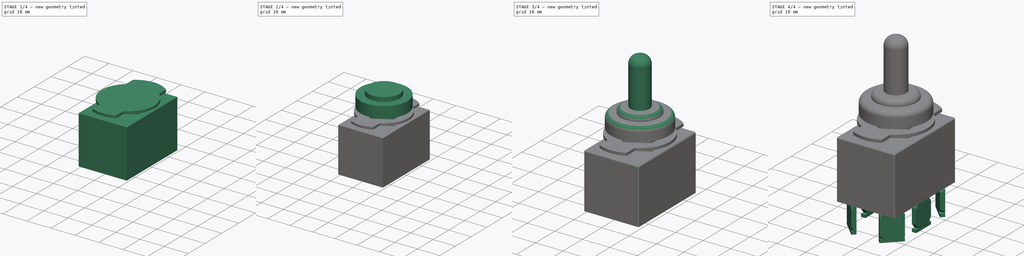
[diagram: build sequence overview — one tinted view per stage of 4, left to right]
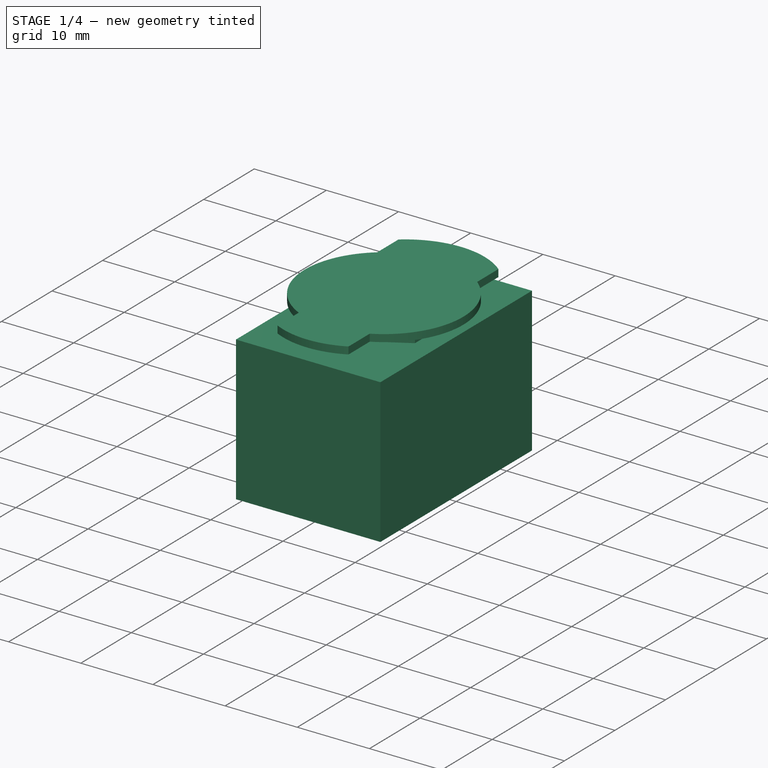
[diagram: stage 1 of 4 — iso view after this stage's code; geometry added in this stage tinted green]
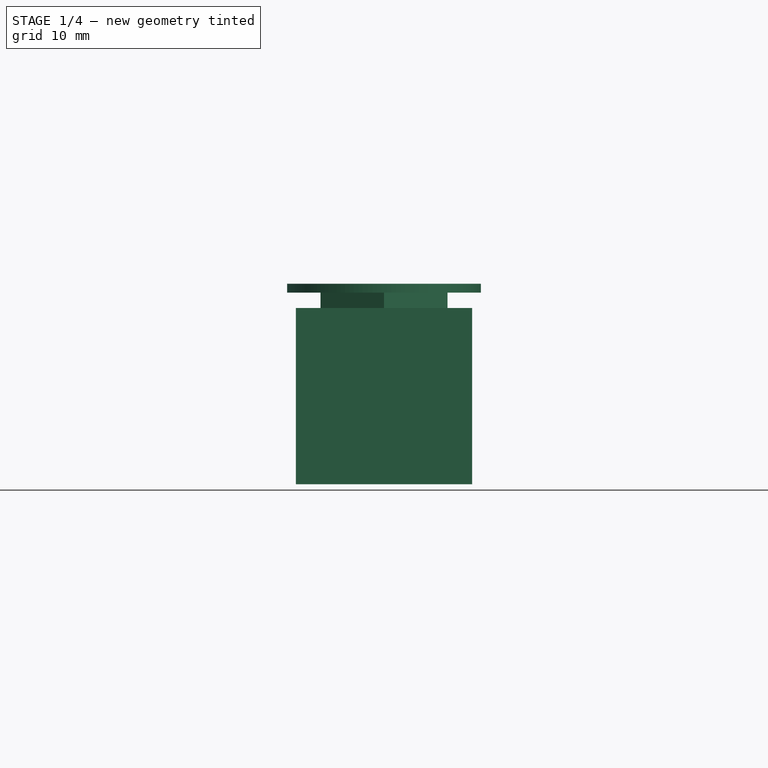
[diagram: stage 1 of 4 — front view after this stage's code; geometry added in this stage tinted green]
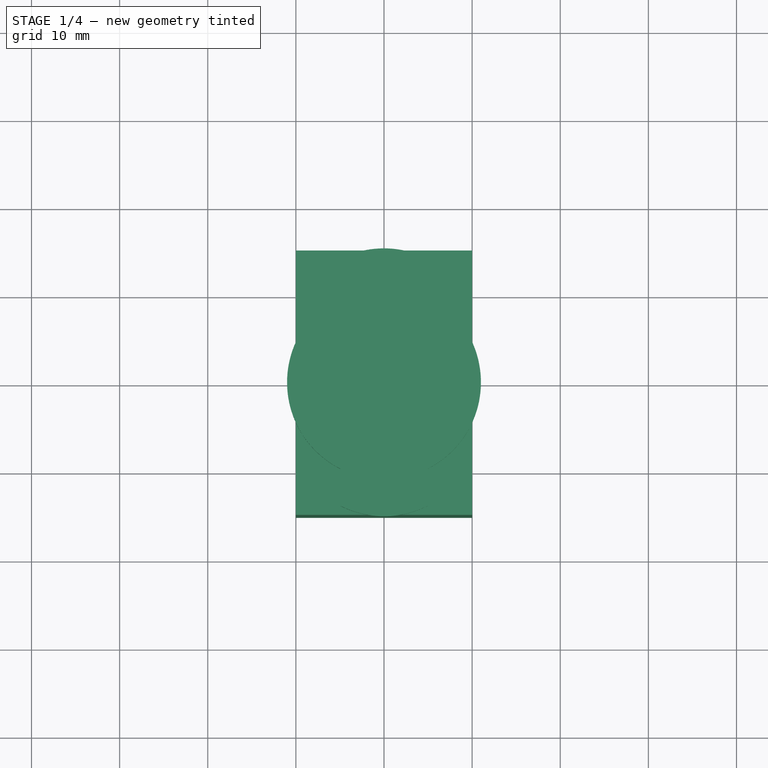
[diagram: stage 1 of 4 — top view after this stage's code; geometry added in this stage tinted green]
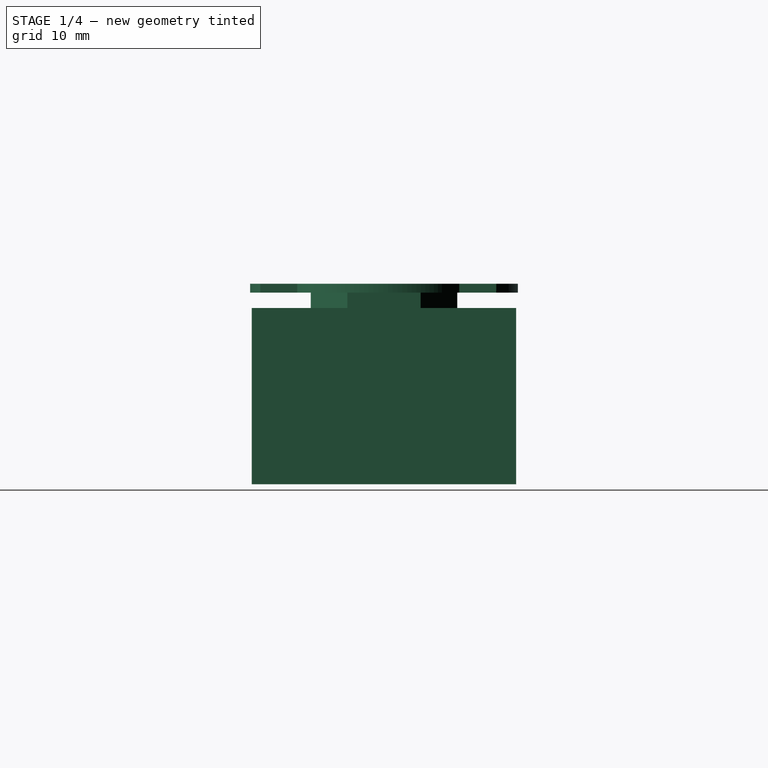
[diagram: stage 1 of 4 — right view after this stage's code; geometry added in this stage tinted green]
FCSTD DOCUMENT  (FreeCAD 1.0R39109 (Git))
Label: switch_3s_15a
License: All rights reserved
LicenseURL: https://en.wikipedia.org/wiki/All_rights_reserved
objects: Sketcher::SketchObject×10, PartDesign::Pad×9, PartDesign::Fillet×3, PartDesign::Pocket×1, PartDesign::Body×1
note: 60 computed .brp shape members not serialized (recipe doc carries the construction recipe); baked Part::Feature solids carry a one-line shape summary decoded from their .brp

FEATURE [Sketcher::SketchObject] Sketch
  ArcFitTolerance = 1e-06
  AttachmentSupport = -> [XY_Plane]
  FullyConstrained = true
  MakeInternals = false
  MapMode = 5
  sketch-geometry (5):
    g0: LineSegment StartX=-10 StartY=15 StartZ=0 EndX=-10 EndY=-15 EndZ=0
    g1: LineSegment StartX=-10 StartY=-15 StartZ=0 EndX=10 EndY=-15 EndZ=0
    g2: LineSegment StartX=10 StartY=-15 StartZ=0 EndX=10 EndY=15 EndZ=0
    g3: LineSegment StartX=10 StartY=15 StartZ=0 EndX=-10 EndY=15 EndZ=0
    g4: GeomPoint [constr] X=0 Y=0 Z=0
  constraints (12):
    c: Coincident(g0,g1)
    c: Coincident(g1,g2)
    c: Coincident(g2,g3)
    c: Coincident(g3,g0)
    c: Vertical(g0)
    c: Vertical(g2)
    c: Horizontal(g1)
    c: Horizontal(g3)
    c: Symmetric(g2,g0,g4)
    c: Coincident(g4,g-1)
    c: DistanceX(g3,g3) = 20
    c: DistanceY(g2,g2) = 30
FEATURE [PartDesign::Pad] Pad  label="BasePad"
  Direction = (0,0,1)
  Length = 20
  Length2 = 10
  Profile = -> Sketch
  ReferenceAxis = -> Sketch [N_Axis]
  Refine = true
  Suppressed = false
  Type = 0
FEATURE [Sketcher::SketchObject] Sketch001
  ArcFitTolerance = 1e-06
  AttachmentSupport = -> [Pad]
  FullyConstrained = true
  MakeInternals = false
  MapMode = 5
  Placement = pos=(0,0,20) rot=(0,0,1;0rad)
  sketch-geometry (7):
    g0: LineSegment StartX=6.35e-13 StartY=-8.31384 StartZ=0 EndX=7.2 EndY=-4.15692 EndZ=0
    g1: LineSegment StartX=7.2 StartY=-4.15692 StartZ=0 EndX=7.2 EndY=4.15692 EndZ=0
    g2: LineSegment StartX=7.2 StartY=4.15692 StartZ=0 EndX=4.103e-13 EndY=8.31384 EndZ=0
    g3: LineSegment StartX=4.103e-13 StartY=8.31384 StartZ=0 EndX=-7.2 EndY=4.15692 EndZ=0
    g4: LineSegment StartX=-7.2 StartY=4.15692 StartZ=0 EndX=-7.2 EndY=-4.15692 EndZ=0
    g5: LineSegment StartX=-7.2 StartY=-4.15692 StartZ=0 EndX=6.35e-13 EndY=-8.31384 EndZ=0
    g6: Circle [constr] CenterX=0 CenterY=0 CenterZ=0 NormalX=0 NormalY=0 NormalZ=1 AngleXU=0 Radius=8.31384
  constraints (16):
    c: Coincident(g0,g1)
    c: Coincident(g1,g2)
    c: Coincident(g2,g3)
    c: Coincident(g3,g4)
    c: Coincident(g4,g5)
    c: Coincident(g5,g0)
    c: Equal(g0, g1-g5) x5
    c: PointOnObject(g0,g6)
    c: PointOnObject(g1,g6)
    c: PointOnObject(g2,g6)
    c: PointOnObject(g3,g6)
    c: PointOnObject(g4,g6)
    c: PointOnObject(g5,g6)
    c: Coincident(g6,g-1)
    c: Vertical(g1)
    c: DistanceX(g3,g1) = 14.4
FEATURE [PartDesign::Pad] Pad001  label="HexPad"
  BaseFeature = -> Pad
  Direction = (0,0,1)
  Length = 1.75
  Length2 = 10
  Profile = -> Sketch001
  ReferenceAxis = -> Sketch001 [N_Axis]
  Refine = true
  Suppressed = false
  Type = 0
FEATURE [Sketcher::SketchObject] Sketch002
  ArcFitTolerance = 1e-06
  AttachmentSupport = -> [Pad001]
  FullyConstrained = false
  MakeInternals = false
  MapMode = 5
  Placement = pos=(0,0,21.75) rot=(0,0,1;0rad)
  sketch-geometry (8):
    g0: ArcOfCircle CenterX=-6e-16 CenterY=4.2 CenterZ=0 NormalX=0 NormalY=0 NormalZ=1 AngleXU=0 Radius=11 StartAngle=0.889849 EndAngle=2.25174
    g1: ArcOfCircle CenterX=0 CenterY=0 CenterZ=0 NormalX=0 NormalY=0 NormalZ=1 AngleXU=0 Radius=11 StartAngle=2.25174 EndAngle=4.24908
    g2: ArcOfCircle CenterX=-9e-16 CenterY=-4.2 CenterZ=0 NormalX=0 NormalY=0 NormalZ=1 AngleXU=0 Radius=11 StartAngle=4.24908 EndAngle=5.17569
    g3: ArcOfCircle CenterX=0 CenterY=0 CenterZ=0 NormalX=0 NormalY=0 NormalZ=1 AngleXU=0 Radius=11 StartAngle=5.17569 EndAngle=7.17303
    g4: LineSegment StartX=-6.92482 StartY=8.54675 StartZ=0 EndX=-6.92482 EndY=12.7467 EndZ=0
    g5: LineSegment StartX=6.92482 StartY=12.7467 StartZ=0 EndX=6.92482 EndY=8.54675 EndZ=0
    g6: LineSegment StartX=-4.91597 StartY=-9.84039 StartZ=0 EndX=-4.91597 EndY=-14.0404 EndZ=0
    g7: LineSegment StartX=4.91597 StartY=-14.0404 StartZ=0 EndX=4.91597 EndY=-9.84039 EndZ=0
  constraints (24):
    c: Coincident(g4,g1)
    c: Coincident(g4,g0)
    c: Coincident(g5,g0)
    c: Coincident(g5,g3)
    c: Coincident(g6,g1)
    c: Coincident(g6,g2)
    c: Coincident(g7,g2)
    c: Coincident(g7,g3)
    c: Vertical(g5)
    c: Vertical(g4)
    c: Vertical(g6)
    c: Vertical(g7)
    c: Coincident(g3,g1)
    c: Coincident(g3,g-1)
    c: Equal(g1,g3)
    c: Radius(g1) = 11
    c: Equal(g2,g1)
    c: Equal(g1,g0)
    c: DistanceY(g5,g5) = 4.2
    c: Horizontal(g0,g0)
    c: Horizontal(g3,g1)
    c: Horizontal(g2,g2)
    c: Equal(g6,g5)
    c: Equal(g5,g4)
FEATURE [PartDesign::Pad] Pad002  label="IndicatorPad"
  BaseFeature = -> Pad001
  Direction = (0,0,1)
  Length = 1
  Length2 = 10
  Profile = -> Sketch002
  ReferenceAxis = -> Sketch002 [N_Axis]
  Refine = true
  Suppressed = false
  Type = 0
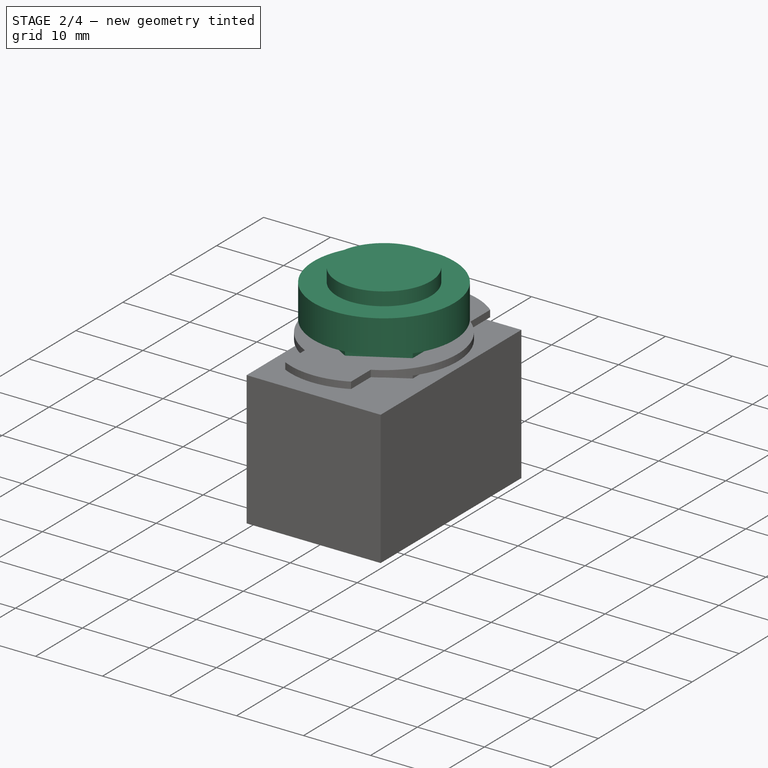
[diagram: stage 2 of 4 — iso view after this stage's code; geometry added in this stage tinted green]
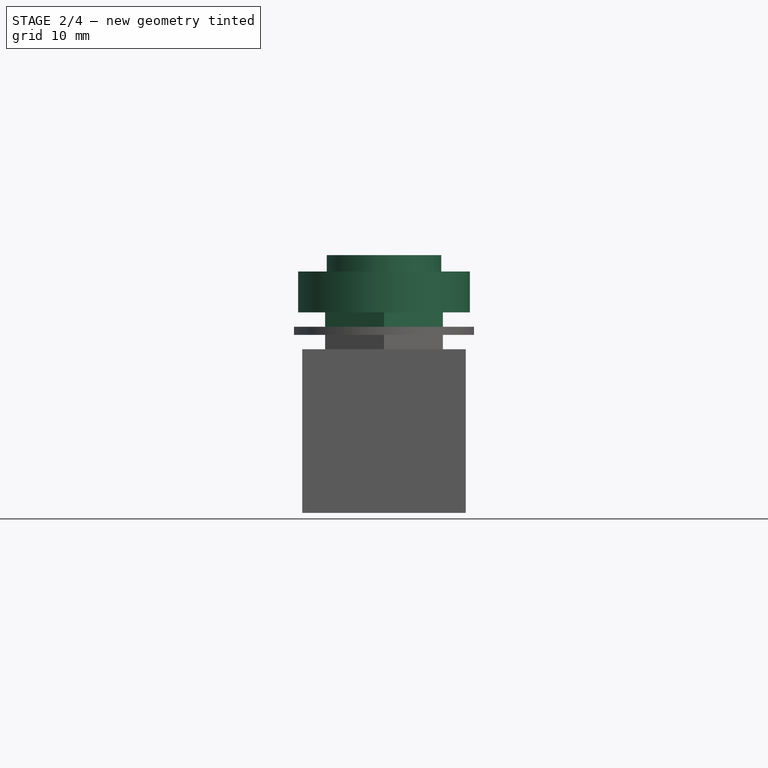
[diagram: stage 2 of 4 — front view after this stage's code; geometry added in this stage tinted green]
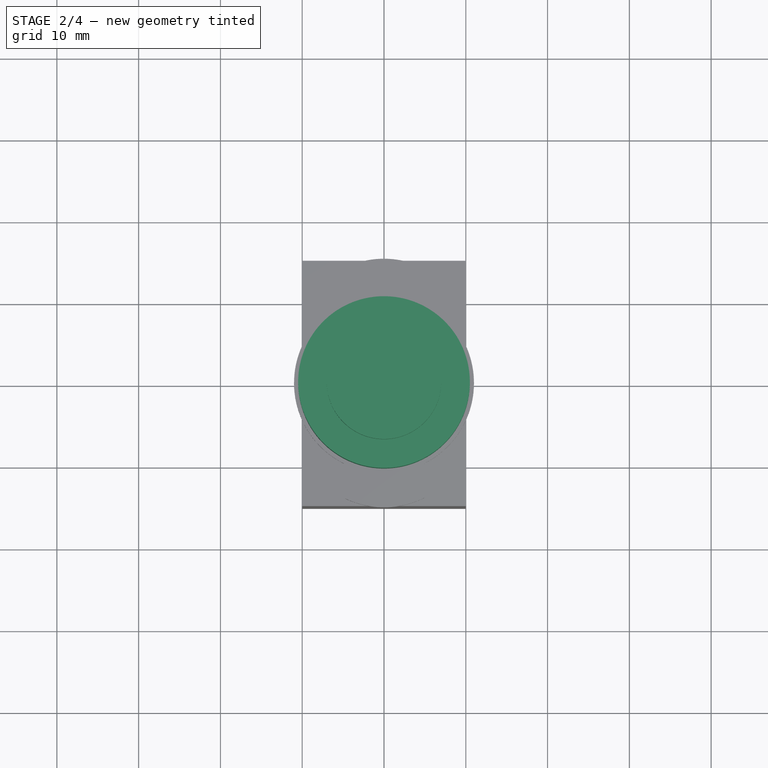
[diagram: stage 2 of 4 — top view after this stage's code; geometry added in this stage tinted green]
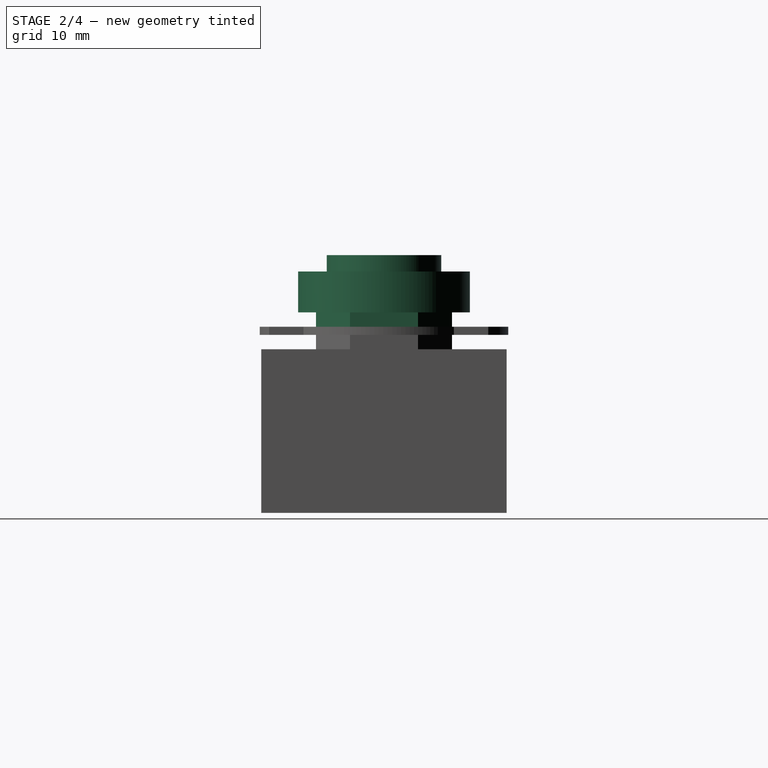
[diagram: stage 2 of 4 — right view after this stage's code; geometry added in this stage tinted green]
FEATURE [Sketcher::SketchObject] Sketch003
  ArcFitTolerance = 1e-06
  AttachmentSupport = -> [Pad002]
  FullyConstrained = true
  MakeInternals = false
  MapMode = 5
  Placement = pos=(0,0,22.75) rot=(0,0,1;0rad)
  sketch-geometry (7):
    g0: LineSegment StartX=7.2 StartY=4.15692 StartZ=0 EndX=2.66e-14 EndY=8.31384 EndZ=0
    g1: LineSegment StartX=2.66e-14 StartY=8.31384 StartZ=0 EndX=-7.2 EndY=4.15692 EndZ=0
    g2: LineSegment StartX=-7.2 StartY=4.15692 StartZ=0 EndX=-7.2 EndY=-4.15692 EndZ=0
    g3: LineSegment StartX=-7.2 StartY=-4.15692 StartZ=0 EndX=1.33e-14 EndY=-8.31384 EndZ=0
    g4: LineSegment StartX=1.35e-14 StartY=-8.31384 StartZ=0 EndX=7.2 EndY=-4.15692 EndZ=0
    g5: LineSegment StartX=7.2 StartY=-4.15692 StartZ=0 EndX=7.2 EndY=4.15692 EndZ=0
    g6: Circle [constr] CenterX=0 CenterY=0 CenterZ=0 NormalX=0 NormalY=0 NormalZ=1 AngleXU=0 Radius=8.31384
  constraints (16):
    c: Coincident(g0,g1)
    c: Coincident(g1,g2)
    c: Coincident(g2,g3)
    c: Coincident(g3,g4)
    c: Coincident(g4,g5)
    c: Coincident(g5,g0)
    c: Equal(g0, g1-g5) x5
    c: PointOnObject(g0,g6)
    c: PointOnObject(g1,g6)
    c: PointOnObject(g2,g6)
    c: PointOnObject(g3,g6)
    c: PointOnObject(g4,g6)
    c: PointOnObject(g5,g6)
    c: Coincident(g6,g-1)
    c: Vertical(g5)
    c: DistanceX(g1,g0) = 14.4
FEATURE [PartDesign::Pad] Pad003  label="HexPad2"
  BaseFeature = -> Pad002
  Direction = (0,0,1)
  Length = 1.75
  Length2 = 10
  Profile = -> Sketch003
  ReferenceAxis = -> Sketch003 [N_Axis]
  Refine = true
  Suppressed = false
  Type = 0
FEATURE [Sketcher::SketchObject] Sketch004
  ArcFitTolerance = 1e-06
  AttachmentSupport = -> [Pad003]
  FullyConstrained = true
  MakeInternals = false
  MapMode = 5
  Placement = pos=(0,0,24.5) rot=(0,0,1;0rad)
  sketch-geometry (1):
    g0: Circle CenterX=0 CenterY=0 CenterZ=0 NormalX=0 NormalY=0 NormalZ=1 AngleXU=0 Radius=10.5
  constraints (2):
    c: Coincident(g0,g-1)
    c: Radius(g0) = 10.5
FEATURE [PartDesign::Pad] Pad004  label="SwicthBasePad"
  BaseFeature = -> Pad003
  Direction = (0,0,1)
  Length = 5
  Length2 = 10
  Profile = -> Sketch004
  ReferenceAxis = -> Sketch004 [N_Axis]
  Refine = true
  Suppressed = false
  Type = 0
FEATURE [Sketcher::SketchObject] Sketch005
  ArcFitTolerance = 1e-06
  AttachmentSupport = -> [Pad004]
  FullyConstrained = true
  MakeInternals = false
  MapMode = 5
  Placement = pos=(0,0,29.5) rot=(0,0,1;0rad)
  sketch-geometry (1):
    g0: Circle CenterX=0 CenterY=0 CenterZ=0 NormalX=0 NormalY=0 NormalZ=1 AngleXU=0 Radius=7
  constraints (2):
    c: Coincident(g0,g-1)
    c: Radius(g0) = 7
FEATURE [PartDesign::Pad] Pad005  label="SwitchBasePad2"
  BaseFeature = -> Pad004
  Direction = (0,0,1)
  Length = 2
  Length2 = 10
  Profile = -> Sketch005
  ReferenceAxis = -> Sketch005 [N_Axis]
  Refine = true
  Suppressed = false
  Type = 0
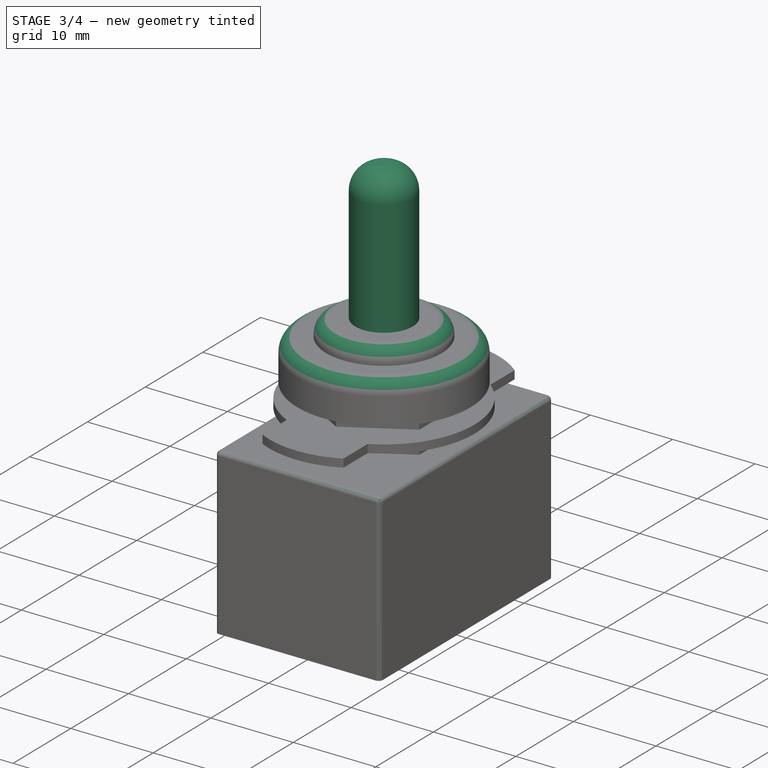
[diagram: stage 3 of 4 — iso view after this stage's code; geometry added in this stage tinted green]
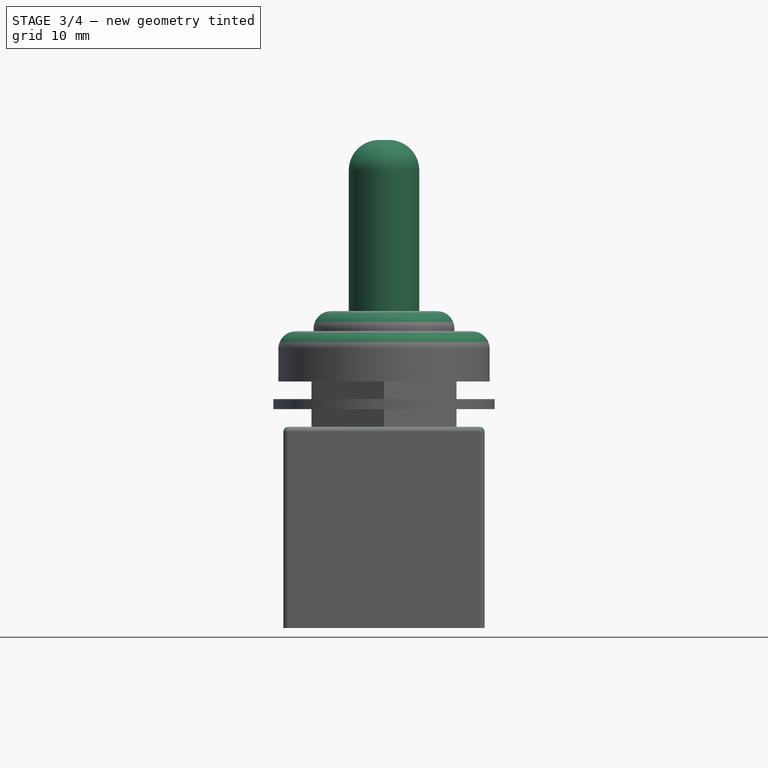
[diagram: stage 3 of 4 — front view after this stage's code; geometry added in this stage tinted green]
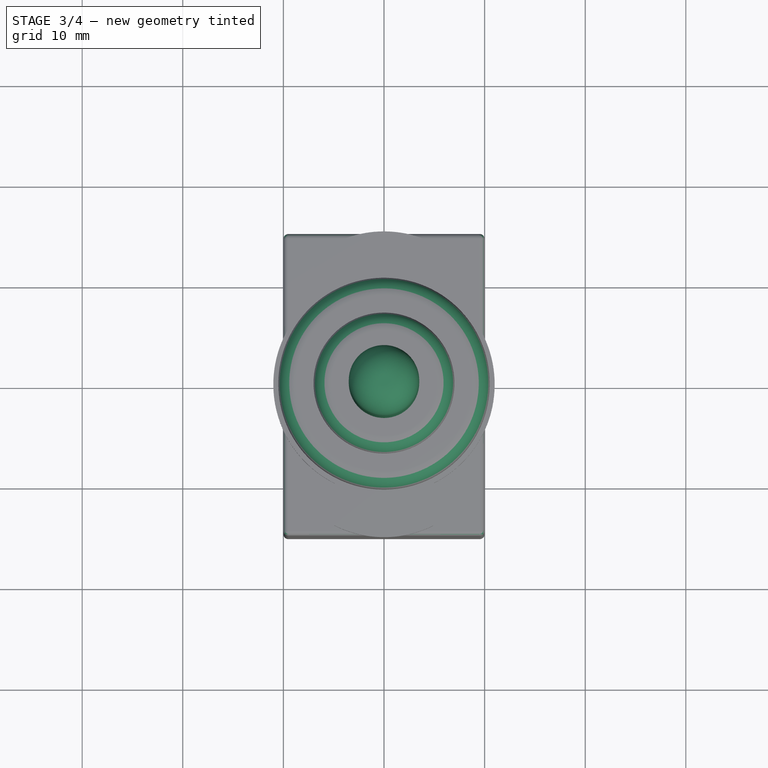
[diagram: stage 3 of 4 — top view after this stage's code; geometry added in this stage tinted green]
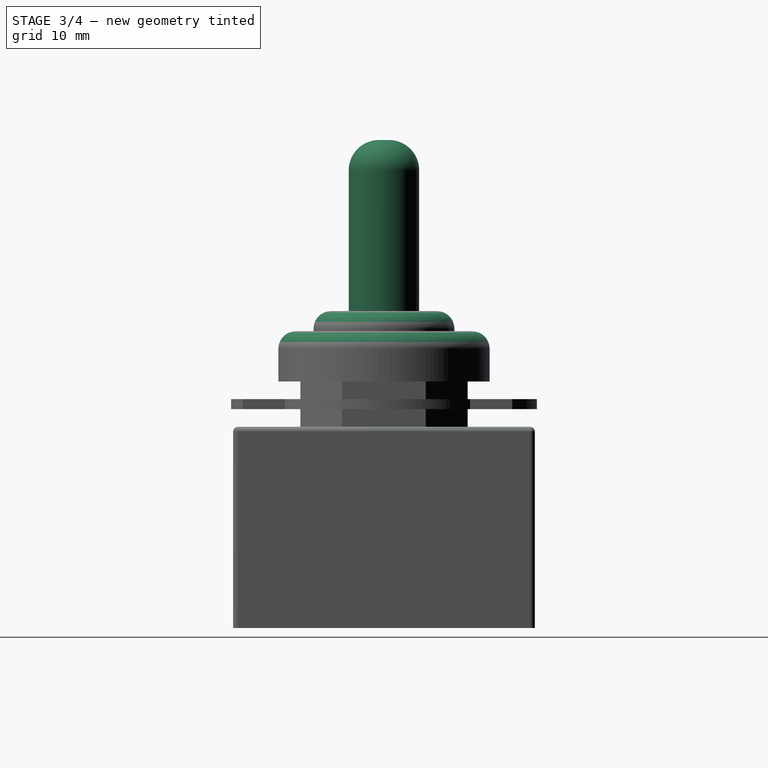
[diagram: stage 3 of 4 — right view after this stage's code; geometry added in this stage tinted green]
FEATURE [Sketcher::SketchObject] Sketch006
  ArcFitTolerance = 1e-06
  AttachmentSupport = -> [Pad005]
  FullyConstrained = true
  MakeInternals = false
  MapMode = 5
  Placement = pos=(0,0,31.5) rot=(0,0,1;0rad)
  sketch-geometry (1):
    g0: Circle CenterX=0 CenterY=0 CenterZ=0 NormalX=0 NormalY=0 NormalZ=1 AngleXU=0 Radius=3.5
  constraints (2):
    c: Coincident(g0,g-1)
    c: Radius(g0) = 3.5
FEATURE [PartDesign::Pad] Pad006  label="SwichtExtensionPad"
  BaseFeature = -> Pad005
  Direction = (0,0,1)
  Length = 17
  Length2 = 10
  Profile = -> Sketch006
  ReferenceAxis = -> Sketch006 [N_Axis]
  Refine = true
  Suppressed = false
  Type = 0
FEATURE [PartDesign::Fillet] Fillet  label="SwitchExtensionFillet"
  Base = -> Pad006 [Edge81]
  BaseFeature = -> Pad006
  Radius = 3
  Refine = true
  SupportTransform = false
  Suppressed = false
  UseAllEdges = false
FEATURE [PartDesign::Fillet] Fillet001  label="BAseFillets"
  Base = -> Fillet [Edge79,Edge81,Edge77,Edge76,Edge72,Edge74,Edge75,Edge73]
  BaseFeature = -> Fillet
  Radius = 0.5
  Refine = true
  SupportTransform = false
  Suppressed = false
  UseAllEdges = false
FEATURE [PartDesign::Fillet] Fillet002  label="SwitchBaseFillet"
  Base = -> Fillet001 [Edge103,Edge106]
  BaseFeature = -> Fillet001
  Radius = 1.75
  Refine = true
  SupportTransform = false
  Suppressed = false
  UseAllEdges = false
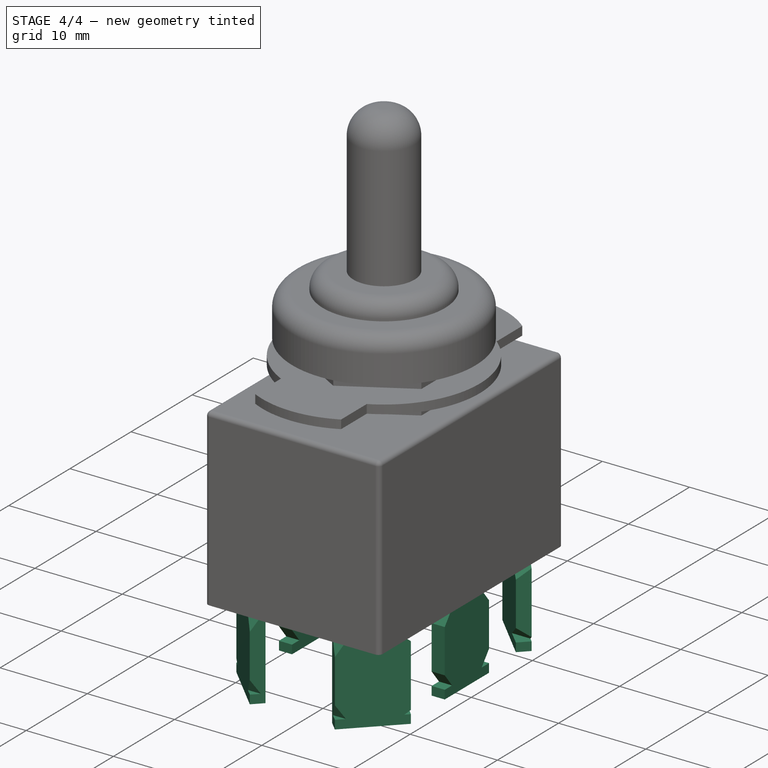
[diagram: stage 4 of 4 — iso view after this stage's code; geometry added in this stage tinted green]
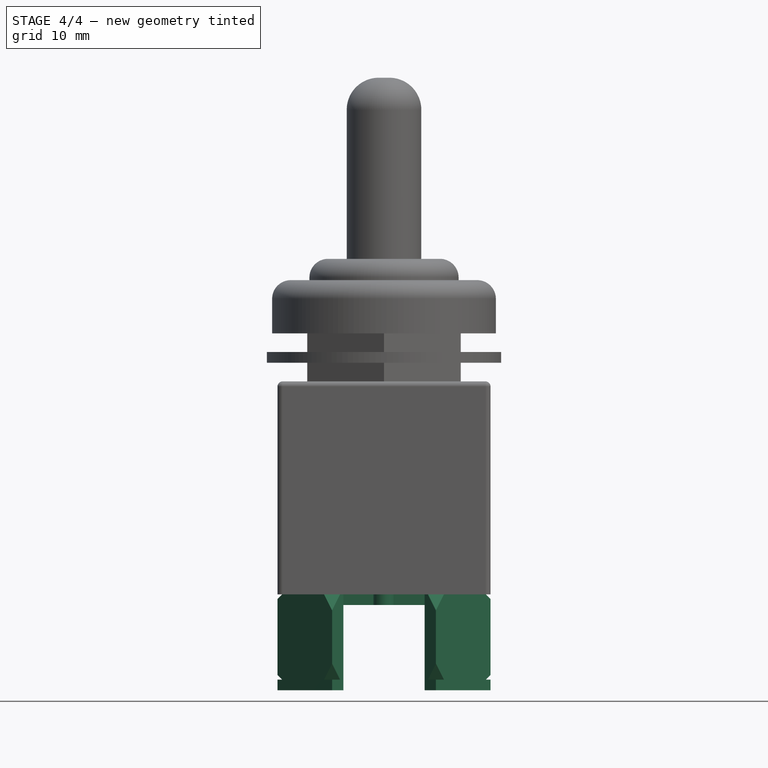
[diagram: stage 4 of 4 — front view after this stage's code; geometry added in this stage tinted green]
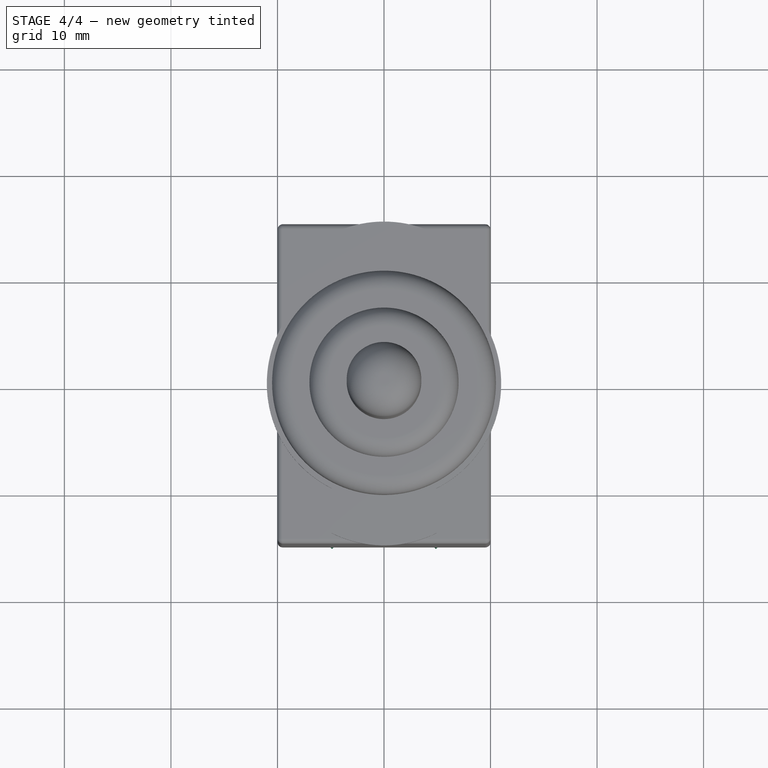
[diagram: stage 4 of 4 — top view after this stage's code; geometry added in this stage tinted green]
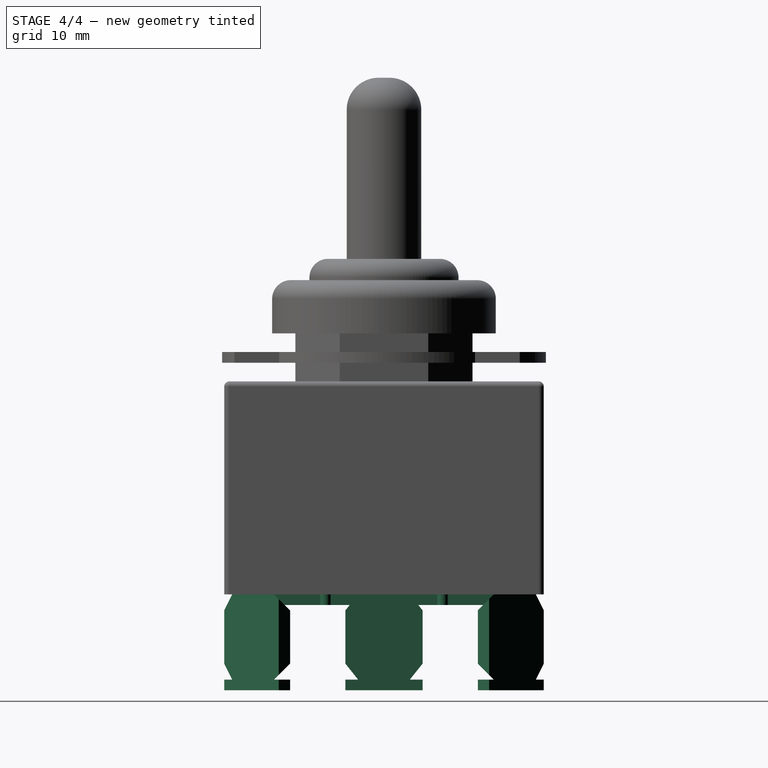
[diagram: stage 4 of 4 — right view after this stage's code; geometry added in this stage tinted green]
FEATURE [Sketcher::SketchObject] Sketch007
  ArcFitTolerance = 1e-06
  AttachmentSupport = -> [Fillet002]
  ExternalGeometry = -> [Fillet002]
  FullyConstrained = true
  MakeInternals = false
  MapMode = 5
  Placement = pos=(0,0,0) rot=(1,0,0;3.14159rad)
  sketch-geometry (24):
    g0: LineSegment StartX=4.87348 StartY=15 StartZ=0 EndX=10 EndY=9.87348 EndZ=0
    g1: LineSegment StartX=10 StartY=9.87348 StartZ=0 EndX=8.93934 EndY=8.81282 EndZ=0
    g2: LineSegment StartX=8.93934 StartY=8.81282 StartZ=0 EndX=3.81282 EndY=13.9393 EndZ=0
    g3: LineSegment StartX=3.81282 StartY=13.9393 StartZ=0 EndX=4.87348 EndY=15 EndZ=0
    g4: LineSegment StartX=8 StartY=3.625 StartZ=0 EndX=8 EndY=-3.625 EndZ=0
    g5: LineSegment StartX=8 StartY=-3.625 StartZ=0 EndX=9.5 EndY=-3.625 EndZ=0
    g6: LineSegment StartX=9.5 StartY=-3.625 StartZ=0 EndX=9.5 EndY=3.625 EndZ=0
    g7: LineSegment StartX=9.5 StartY=3.625 StartZ=0 EndX=8 EndY=3.625 EndZ=0
    g8: LineSegment StartX=-4.87348 StartY=15 StartZ=0 EndX=-10 EndY=9.87348 EndZ=0
    g9: LineSegment StartX=-10 StartY=9.87348 StartZ=0 EndX=-8.93934 EndY=8.81282 EndZ=0
    g10: LineSegment StartX=-8.93934 StartY=8.81282 StartZ=0 EndX=-3.81282 EndY=13.9393 EndZ=0
    g11: LineSegment StartX=-3.81282 StartY=13.9393 StartZ=0 EndX=-4.87348 EndY=15 EndZ=0
    g12: LineSegment StartX=-8 StartY=3.625 StartZ=0 EndX=-8 EndY=-3.625 EndZ=0
    g13: LineSegment StartX=-8 StartY=-3.625 StartZ=0 EndX=-9.5 EndY=-3.625 EndZ=0
    g14: LineSegment StartX=-9.5 StartY=-3.625 StartZ=0 EndX=-9.5 EndY=3.625 EndZ=0
    g15: LineSegment StartX=-9.5 StartY=3.625 StartZ=0 EndX=-8 EndY=3.625 EndZ=0
    g16: LineSegment StartX=4.87348 StartY=-15 StartZ=0 EndX=10 EndY=-9.87348 EndZ=0
    g17: LineSegment StartX=10 StartY=-9.87348 StartZ=0 EndX=8.93934 EndY=-8.81282 EndZ=0
    g18: LineSegment StartX=8.93934 StartY=-8.81282 StartZ=0 EndX=3.81282 EndY=-13.9393 EndZ=0
    g19: LineSegment StartX=3.81282 StartY=-13.9393 StartZ=0 EndX=4.87348 EndY=-15 EndZ=0
    g20: LineSegment StartX=-4.87348 StartY=-15 StartZ=0 EndX=-10 EndY=-9.87348 EndZ=0
    g21: LineSegment StartX=-10 StartY=-9.87348 StartZ=0 EndX=-8.93934 EndY=-8.81282 EndZ=0
    g22: LineSegment StartX=-8.93934 StartY=-8.81282 StartZ=0 EndX=-3.81282 EndY=-13.9393 EndZ=0
    g23: LineSegment StartX=-3.81282 StartY=-13.9393 StartZ=0 EndX=-4.87348 EndY=-15 EndZ=0
  constraints (61):
    c: Coincident(g0,g1)
    c: Coincident(g1,g2)
    c: Coincident(g2,g3)
    c: Coincident(g3,g0)
    c: Coincident(g4,g5)
    c: Horizontal(g5)
    c: Coincident(g5,g6)
    c: Coincident(g6,g7)
    c: Coincident(g7,g4)
    c: Vertical(g4)
    c: Horizontal(g7)
    c: DistanceY(g6,g6) = 7.25
    c: Equal(g0,g6)
    c: Parallel(g2,g0)
    c: Parallel(g1,g3)
    c: PointOnObject(g0,g-4)
    c: PointOnObject(g0,g-3)
    c: Angle(g-4,g0) = 2.35619
    c: Perpendicular(g1,g2)
    c: Equal(g1,g7)
    c: DistanceX(g7,g7) = 1.5
    c: DistanceX(g6,g-3) = 0.5
    c: Symmetric(g5,g6,g-1)
    c: Coincident(g8,g9)
    c: Coincident(g9,g10)
    c: Coincident(g10,g11)
    c: Coincident(g11,g8)
    c: Coincident(g12,g13)
    c: Horizontal(g13)
    c: Coincident(g13,g14)
    c: Coincident(g14,g15)
    c: Coincident(g15,g12)
    c: Vertical(g12)
    c: Horizontal(g15)
    c: Equal(g8,g14)
    c: Parallel(g10,g8)
    c: Equal(g9,g15)
    c: Coincident(g16,g17)
    c: Coincident(g17,g18)
    c: Coincident(g18,g19)
    c: Coincident(g19,g16)
    c: Parallel(g18,g16)
    c: Parallel(g17,g19)
    c: Perpendicular(g17,g18)
    c: Coincident(g20,g21)
    c: Coincident(g21,g22)
    c: Coincident(g22,g23)
    c: Coincident(g23,g20)
    c: Parallel(g22,g20)
    c: Parallel(g21,g23)
    c: Perpendicular(g21,g22)
    c: Symmetric(g10,g2,g-2)
    c: Symmetric(g9,g1,g-2)
    c: Symmetric(g8,g0,g-2)
    c: Symmetric(g12,g4,g-2)
    c: Symmetric(g13,g5,g-2)
    c: Symmetric(g21,g9,g-1)
    c: Symmetric(g20,g8,g-1)
    c: Symmetric(g18,g2,g-1)
    c: Symmetric(g1,g17,g-1)
    c: Symmetric(g20,g16,g-2)
FEATURE [PartDesign::Pad] Pad007  label="TerminalsPad"
  BaseFeature = -> Fillet002
  Direction = (0,0,-1)
  Length = 9
  Length2 = 10
  Profile = -> Sketch007
  ReferenceAxis = -> Sketch007 [N_Axis]
  Refine = true
  Suppressed = false
  Type = 0
FEATURE [Sketcher::SketchObject] Sketch008
  ArcFitTolerance = 1e-06
  AttachmentSupport = -> [Pad007]
  ExternalGeometry = -> [Pad007]
  FullyConstrained = true
  MakeInternals = false
  MapMode = 5
  Placement = pos=(-10,0,0) rot=(0.57735,-0.57735,-0.57735;2.0944rad)
  sketch-geometry (36):
    g0: LineSegment StartX=-15 StartY=0 StartZ=0 EndX=-15 EndY=-1.5 EndZ=0
    g1: LineSegment StartX=-15 StartY=-1.5 StartZ=0 EndX=-14.25 EndY=0 EndZ=0
    g2: LineSegment StartX=-14.25 StartY=0 StartZ=0 EndX=-15 EndY=0 EndZ=0
    g3: LineSegment StartX=-8.81282 StartY=0 StartZ=0 EndX=-8.81282 EndY=-1.5 EndZ=0
    g4: LineSegment StartX=-8.81282 StartY=-1.5 StartZ=0 EndX=-10.3128 EndY=0 EndZ=0
    g5: LineSegment StartX=-10.3128 StartY=0 StartZ=0 EndX=-8.81282 EndY=0 EndZ=0
    g6: LineSegment StartX=-15 StartY=-6.5 StartZ=0 EndX=-14.25 EndY=-8 EndZ=0
    g7: LineSegment StartX=-14.25 StartY=-8 StartZ=0 EndX=-15 EndY=-8 EndZ=0
    g8: LineSegment StartX=-15 StartY=-8 StartZ=0 EndX=-15 EndY=-6.5 EndZ=0
    g9: LineSegment StartX=-8.81282 StartY=-8 StartZ=0 EndX=-8.81282 EndY=-6.5 EndZ=0
    g10: LineSegment StartX=-8.81282 StartY=-8 StartZ=0 EndX=-10.3128 EndY=-8 EndZ=0
    g11: LineSegment StartX=-10.3128 StartY=-8 StartZ=0 EndX=-8.81282 EndY=-6.5 EndZ=0
    g12: LineSegment StartX=15 StartY=0 StartZ=0 EndX=15 EndY=-1.5 EndZ=0
    g13: LineSegment StartX=15 StartY=-1.5 StartZ=0 EndX=14.25 EndY=0 EndZ=0
    g14: LineSegment StartX=14.25 StartY=0 StartZ=0 EndX=15 EndY=0 EndZ=0
    g15: LineSegment StartX=8.81282 StartY=0 StartZ=0 EndX=8.81282 EndY=-1.5 EndZ=0
    g16: LineSegment StartX=8.81282 StartY=-1.5 StartZ=0 EndX=10.3128 EndY=0 EndZ=0
    g17: LineSegment StartX=10.3128 StartY=0 StartZ=0 EndX=8.81282 EndY=0 EndZ=0
    g18: LineSegment StartX=15 StartY=-6.5 StartZ=0 EndX=14.25 EndY=-8 EndZ=0
    g19: LineSegment StartX=14.25 StartY=-8 StartZ=0 EndX=15 EndY=-8 EndZ=0
    g20: LineSegment StartX=15 StartY=-8 StartZ=0 EndX=15 EndY=-6.5 EndZ=0
    g21: LineSegment StartX=8.81282 StartY=-8 StartZ=0 EndX=8.81282 EndY=-6.5 EndZ=0
    g22: LineSegment StartX=8.81282 StartY=-8 StartZ=0 EndX=10.3128 EndY=-8 EndZ=0
    g23: LineSegment StartX=10.3128 StartY=-8 StartZ=0 EndX=8.81282 EndY=-6.5 EndZ=0
    g24: LineSegment StartX=-3.625 StartY=0 StartZ=0 EndX=-3.625 EndY=-1.5 EndZ=0
    g25: LineSegment StartX=-3.625 StartY=-1.5 StartZ=0 EndX=-2.425 EndY=0 EndZ=0
    g26: LineSegment StartX=-2.425 StartY=0 StartZ=0 EndX=-3.625 EndY=0 EndZ=0
    g27: LineSegment StartX=-3.625 StartY=-6.5 StartZ=0 EndX=-3.625 EndY=-8 EndZ=0
    g28: LineSegment StartX=-3.625 StartY=-8 StartZ=0 EndX=-2.425 EndY=-8 EndZ=0
    g29: LineSegment StartX=-2.425 StartY=-8 StartZ=0 EndX=-3.625 EndY=-6.5 EndZ=0
    g30: LineSegment StartX=3.625 StartY=0 StartZ=0 EndX=3.625 EndY=-1.5 EndZ=0
    g31: LineSegment StartX=3.625 StartY=-1.5 StartZ=0 EndX=2.425 EndY=0 EndZ=0
    g32: LineSegment StartX=2.425 StartY=0 StartZ=0 EndX=3.625 EndY=0 EndZ=0
    g33: LineSegment StartX=3.625 StartY=-6.5 StartZ=0 EndX=3.625 EndY=-8 EndZ=0
    g34: LineSegment StartX=3.625 StartY=-8 StartZ=0 EndX=2.425 EndY=-8 EndZ=0
    g35: LineSegment StartX=2.425 StartY=-8 StartZ=0 EndX=3.625 EndY=-6.5 EndZ=0
  constraints (92):
    c: PointOnObject(g0,g-1)
    c: Vertical(g0)
    c: Coincident(g0,g1)
    c: PointOnObject(g1,g-1)
    c: Coincident(g1,g2)
    c: Coincident(g2,g0)
    c: PointOnObject(g3,g-1)
    c: Coincident(g3,g4)
    c: PointOnObject(g4,g-1)
    c: Coincident(g4,g5)
    c: Coincident(g5,g3)
    c: PointOnObject(g0,g-3)
    c: Vertical(g3)
    c: PointOnObject(g3,g-4)
    c: DistanceX(g5,g5) = 1.5
    c: DistanceX(g2,g2) = 0.75
    c: DistanceY(g3,g3) = 1.5
    c: Horizontal(g0,g3)
    c: PointOnObject(g6,g-3)
    c: Coincident(g6,g7)
    c: PointOnObject(g7,g-3)
    c: Coincident(g7,g8)
    c: Coincident(g8,g6)
    c: Vertical(g6,g1)
    c: Horizontal(g7)
    c: PointOnObject(g9,g-4)
    c: PointOnObject(g9,g-4)
    c: Coincident(g9,g10)
    c: Coincident(g10,g11)
    c: Coincident(g11,g9)
    c: Vertical(g10,g4)
    c: Horizontal(g10)
    c: DistanceY(g9,g9) = 1.5
    c: Horizontal(g10,g6)
    c: Horizontal(g6,g9)
    c: DistanceY(g9,g3) = 5
    c: Coincident(g12,g13)
    c: Coincident(g13,g14)
    c: Coincident(g14,g12)
    c: Coincident(g15,g16)
    c: Coincident(g16,g17)
    c: Coincident(g17,g15)
    c: Coincident(g18,g19)
    c: Coincident(g19,g20)
    c: Coincident(g20,g18)
    c: Coincident(g21,g22)
    c: Coincident(g22,g23)
    c: Coincident(g23,g21)
    c: Horizontal(g22)
    c: Symmetric(g15,g3,g-2)
    c: Symmetric(g0,g12,g-2)
    c: Symmetric(g6,g18,g-2)
    c: Symmetric(g21,g9,g-2)
    c: Symmetric(g6,g18,g-2)
    c: Symmetric(g7,g19,g-2)
    c: Symmetric(g0,g12,g-2)
    c: Symmetric(g4,g16,g-2)
    c: Symmetric(g15,g3,g-2)
    c: Horizontal(g21,g7)
    c: Equal(g14,g2)
    c: Horizontal(g13,g16)
    c: Equal(g22,g10)
    c: Vertical(g21)
    c: Coincident(g-5,g24)
    c: PointOnObject(g24,g-5)
    c: Coincident(g24,g25)
    c: PointOnObject(g25,g-1)
    c: Coincident(g25,g26)
    c: Coincident(g26,g24)
    c: PointOnObject(g27,g-5)
    c: PointOnObject(g27,g-5)
    c: Coincident(g27,g28)
    c: Horizontal(g28)
    c: Coincident(g28,g29)
    c: Coincident(g29,g27)
    c: Vertical(g28,g25)
    c: DistanceX(g26,g26) = 1.2
    c: Horizontal(g24,g3)
    c: Horizontal(g27,g9)
    c: Horizontal(g27,g9)
    c: Coincident(g30,g31)
    c: Coincident(g31,g32)
    c: Coincident(g32,g30)
    c: Coincident(g33,g34)
    c: Coincident(g34,g35)
    c: Coincident(g35,g33)
    c: Symmetric(g30,g24,g-2)
    c: Symmetric(g30,g24,g-2)
    c: Symmetric(g25,g31,g-2)
    c: Symmetric(g34,g28,g-2)
    c: Symmetric(g33,g27,g-2)
    c: Symmetric(g33,g27,g-2)
FEATURE [PartDesign::Pocket] Pocket  label="TerminalsPockets"
  BaseFeature = -> Pad007
  Direction = (1,0,0)
  Length = 5
  Length2 = 5
  Profile = -> Sketch008
  ReferenceAxis = -> Sketch008 [N_Axis]
  Refine = true
  Suppressed = false
  Type = 1
FEATURE [Sketcher::SketchObject] Sketch009
  ArcFitTolerance = 1e-06
  AttachmentSupport = -> [Pocket]
  FullyConstrained = true
  MakeInternals = false
  MapMode = 5
  Placement = pos=(0,0,0) rot=(1,0,0;3.14159rad)
  sketch-geometry (23):
    g0: LineSegment StartX=-1 StartY=12 StartZ=0 EndX=-1 EndY=6 EndZ=0
    g1: LineSegment StartX=-1 StartY=6 StartZ=0 EndX=-6 EndY=6 EndZ=0
    g2: ArcOfCircle CenterX=-6 CenterY=5.5 CenterZ=0 NormalX=0 NormalY=0 NormalZ=1 AngleXU=0 Radius=0.5 StartAngle=1.5708 EndAngle=4.71239
    g3: LineSegment StartX=-6 StartY=5 StartZ=0 EndX=-1 EndY=5 EndZ=0
    g4: LineSegment StartX=-1 StartY=5 StartZ=0 EndX=-1 EndY=-5 EndZ=0
    g5: LineSegment StartX=-1 StartY=-5 StartZ=0 EndX=-6 EndY=-5 EndZ=0
    g6: ArcOfCircle CenterX=-6 CenterY=-5.5 CenterZ=0 NormalX=0 NormalY=0 NormalZ=1 AngleXU=0 Radius=0.5 StartAngle=1.5708 EndAngle=4.71239
    g7: LineSegment StartX=-6 StartY=-6 StartZ=0 EndX=-1 EndY=-6 EndZ=0
    g8: LineSegment StartX=-1 StartY=-6 StartZ=0 EndX=-1 EndY=-12 EndZ=0
    g9: ArcOfCircle CenterX=0 CenterY=-12 CenterZ=0 NormalX=0 NormalY=0 NormalZ=1 AngleXU=0 Radius=1 StartAngle=3.14159 EndAngle=4.71239
    g10: ArcOfCircle CenterX=0 CenterY=12 CenterZ=0 NormalX=0 NormalY=0 NormalZ=1 AngleXU=0 Radius=1 StartAngle=1.5708 EndAngle=3.14159
    g11: GeomPoint X=-6.5 Y=5.5 Z=0
    g12: LineSegment StartX=1 StartY=12 StartZ=0 EndX=1 EndY=6 EndZ=0
    g13: LineSegment StartX=1 StartY=6 StartZ=0 EndX=6 EndY=6 EndZ=0
    g14: ArcOfCircle CenterX=6 CenterY=5.5 CenterZ=0 NormalX=0 NormalY=0 NormalZ=1 AngleXU=0 Radius=0.5 StartAngle=4.71239 EndAngle=7.85398
    g15: LineSegment StartX=6 StartY=5 StartZ=0 EndX=1 EndY=5 EndZ=0
    g16: LineSegment StartX=1 StartY=5 StartZ=0 EndX=1 EndY=-5 EndZ=0
    g17: LineSegment StartX=1 StartY=-5 StartZ=0 EndX=6 EndY=-5 EndZ=0
    g18: ArcOfCircle CenterX=6 CenterY=-5.5 CenterZ=0 NormalX=0 NormalY=0 NormalZ=1 AngleXU=0 Radius=0.5 StartAngle=4.71239 EndAngle=7.85398
    g19: LineSegment StartX=6 StartY=-6 StartZ=0 EndX=1 EndY=-6 EndZ=0
    g20: LineSegment StartX=1 StartY=-6 StartZ=0 EndX=1 EndY=-12 EndZ=0
    g21: ArcOfCircle CenterX=0 CenterY=-12 CenterZ=0 NormalX=0 NormalY=0 NormalZ=1 AngleXU=0 Radius=1 StartAngle=4.71239 EndAngle=6.28319
    g22: ArcOfCircle CenterX=0 CenterY=12 CenterZ=0 NormalX=0 NormalY=0 NormalZ=1 AngleXU=0 Radius=1 StartAngle=-9e-16 EndAngle=1.5708
  constraints (55):
    c: Vertical(g0)
    c: Coincident(g0,g1)
    c: Tangent(g1,g2) = -1.5708
    c: Tangent(g2,g3) = -1.5708
    c: Coincident(g3,g4)
    c: Coincident(g4,g5)
    c: Horizontal(g5)
    c: Tangent(g5,g6) = -1.5708
    c: Coincident(g6,g7)
    c: Horizontal(g7)
    c: Coincident(g7,g8)
    c: Vertical(g8)
    c: Tangent(g8,g9) = -1.5708
    c: PointOnObject(g9,g-2)
    c: PointOnObject(g10,g-2)
    c: Tangent(g10,g0) = -1.5708
    c: Vertical(g3,g0)
    c: Horizontal(g3)
    c: Horizontal(g1)
    c: Symmetric(g3,g4,g-1)
    c: Symmetric(g0,g7,g-1)
    c: Symmetric(g10,g9,g-1)
    c: PointOnObject(g10,g-2)
    c: DistanceX(g7,g-1) = 1
    c: DistanceY(g6,g5) = 1
    c: Vertical(g6,g6)
    c: Vertical(g5,g2)
    c: DistanceY(g7,g0) = 12
    c: DistanceY(g9,g10) = 26
    c: PointOnObject(g11,g2)
    c: Horizontal(g11,g2)
    c: DistanceX(g11,g-1) = 6.5
    c: Vertical(g12)
    c: Coincident(g12,g13)
    c: Tangent(g13,g14) = 1.5708
    c: Tangent(g14,g15) = 1.5708
    c: Coincident(g15,g16)
    c: Coincident(g16,g17)
    c: Tangent(g17,g18) = 1.5708
    c: Coincident(g18,g19)
    c: Horizontal(g19)
    c: Coincident(g19,g20)
    c: Vertical(g20)
    c: Tangent(g20,g21) = 1.5708
    c: Tangent(g22,g12) = 1.5708
    c: Tangent(g10,g22) = -1.5708
    c: Coincident(g9,g21)
    c: Coincident(g21,g9)
    c: Symmetric(g12,g0,g-2)
    c: Symmetric(g14,g2,g-2)
    c: Symmetric(g18,g6,g-2)
    c: Symmetric(g16,g4,g-2)
    c: Symmetric(g18,g6,g-2)
    c: Symmetric(g14,g2,g-2)
    c: Vertical(g16)
FEATURE [PartDesign::Pad] Pad008  label="DownPad"
  BaseFeature = -> Pocket
  Direction = (0,0,-1)
  Length = 1
  Length2 = 10
  Profile = -> Sketch009
  ReferenceAxis = -> Sketch009 [N_Axis]
  Refine = true
  Suppressed = false
  Type = 0
FEATURE [PartDesign::Body] Body  label="swtich_3s_15a"
  AllowCompound = false
  Group = -> [Sketch,Pad,Sketch001,Pad001,Sketch002,Pad002,Sketch003,Pad003,Sketch004,Pad004,Sketch005,Pad005,Sketch006,Pad006,Fillet,Fillet001,Fillet002,Sketch007,Pad007,Sketch008,Pocket,Sketch009,Pad008]
  Origin = -> Origin
  Tip = -> Pad008
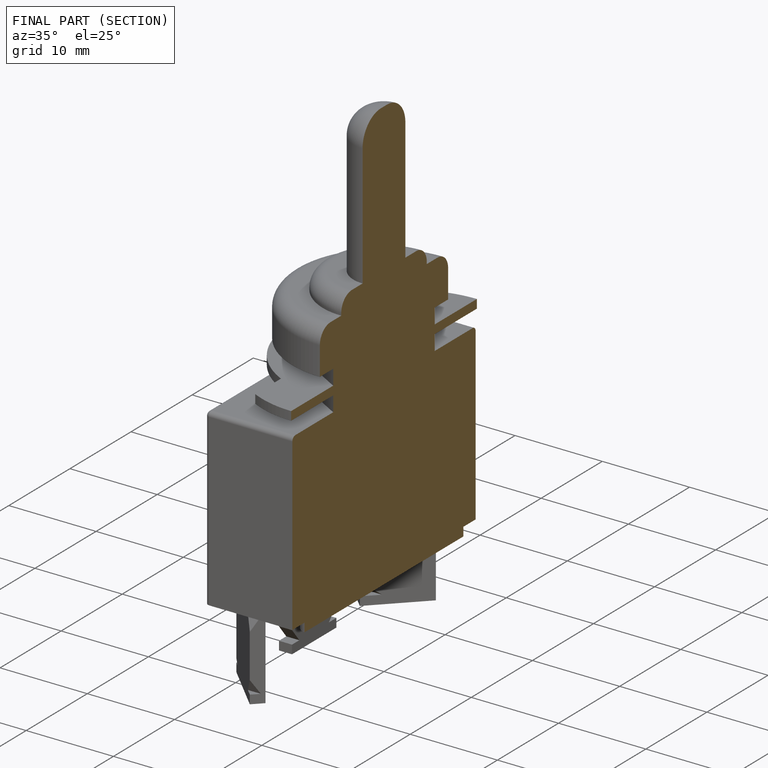
[diagram: finished part — half-section view (interior)]
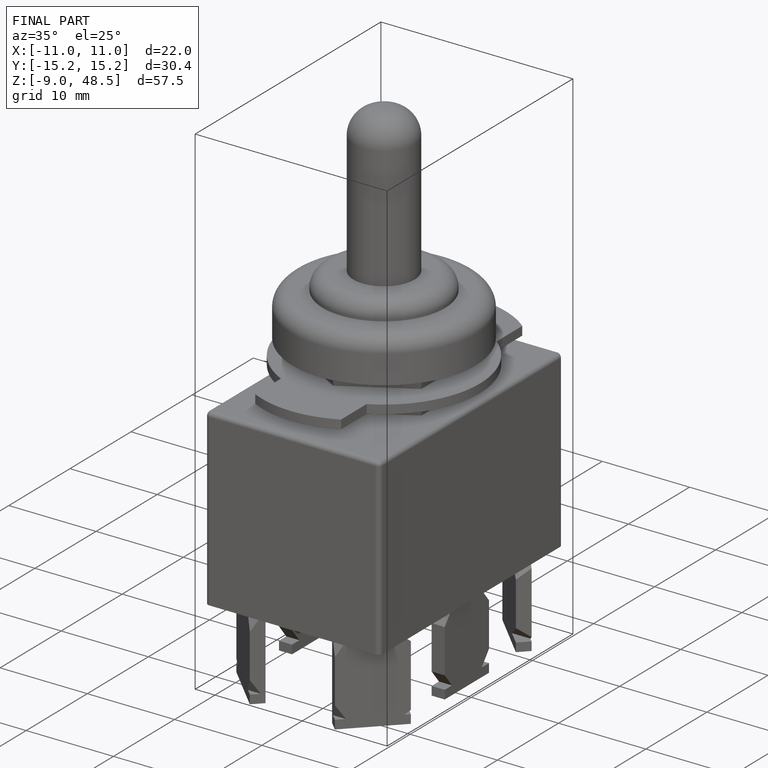
[diagram: finished part — iso view with bounding-box wireframe]
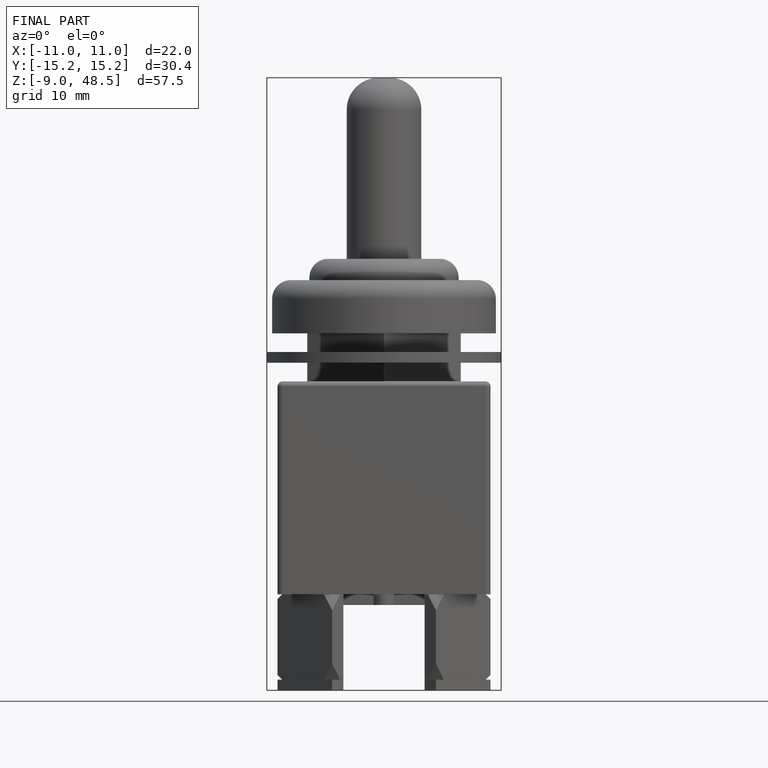
[diagram: finished part — front view with bounding-box wireframe]
